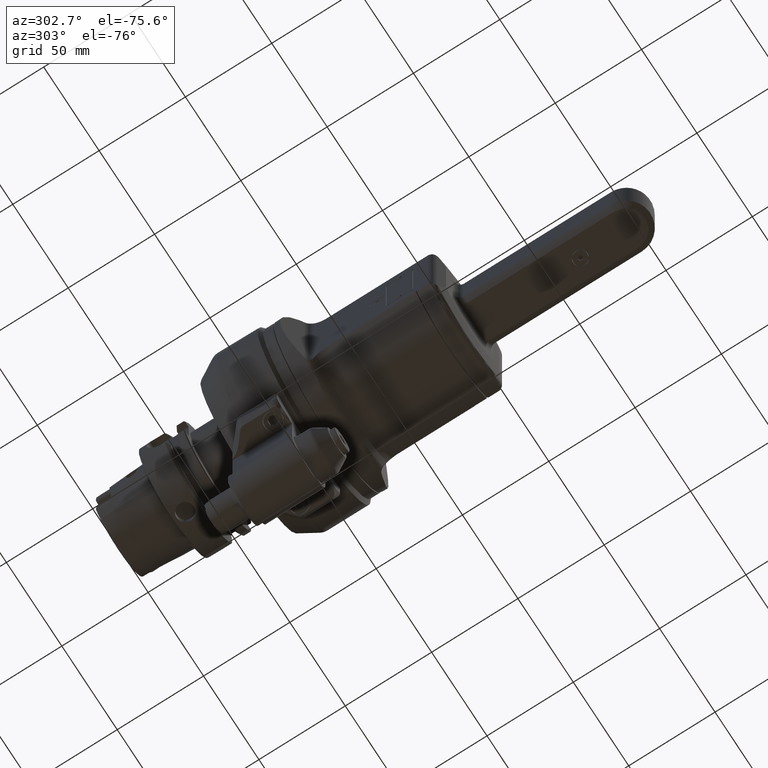
[diagram: clean part render]
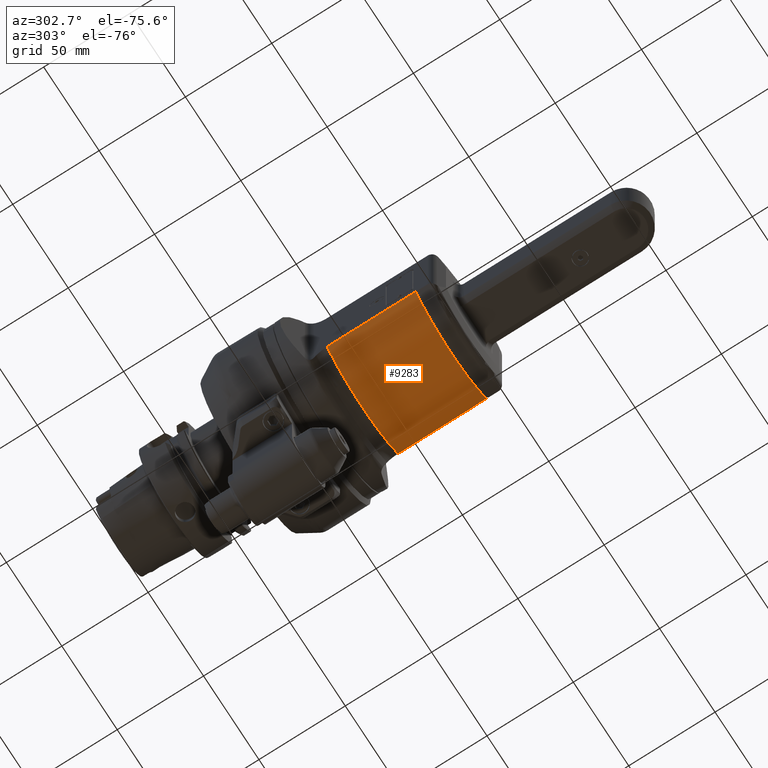
[diagram: same view with one face highlighted and labeled with its STEP entity id]
A machine part, auxiliary view. The second image highlights one B-rep face of the part: STEP entity #9283.
In plain terms, the highlighted cylindrical surface (partial cylindrical patch) has radius 42.5 mm, axis along (0, -1, 0).
Its self-contained STEP definition (entity closure, byte-faithful):
#1076=FACE_OUTER_BOUND('',#1668,.T.);
#1668=EDGE_LOOP('',(#8121,#8122,#8123,#8124,#8125,#8126,#8127));
#2121=CIRCLE('',#10257,51.9372405814551);
#2122=CIRCLE('',#10259,51.8413641367197);
#2143=CIRCLE('',#10302,42.5);
#2144=CIRCLE('',#10304,42.5);
#2854=LINE('',#57652,#3502);
#2865=LINE('',#57710,#3513);
#2869=LINE('',#57722,#3517);
#3502=VECTOR('',#12398,51.26935071414);
#3513=VECTOR('',#12437,6.3);
#3517=VECTOR('',#12451,44.46935112619);
#4357=VERTEX_POINT('',#57638);
#4358=VERTEX_POINT('',#57651);
#4380=VERTEX_POINT('',#57703);
#4381=VERTEX_POINT('',#57709);
#4382=VERTEX_POINT('',#57713);
#4383=VERTEX_POINT('',#57717);
#4384=VERTEX_POINT('',#57721);
#5604=EDGE_CURVE('',#4358,#4357,#2854,.T.);
#5629=EDGE_CURVE('',#4381,#4380,#2865,.T.);
#5631=EDGE_CURVE('',#4381,#4382,#2121,.T.);
#5633=EDGE_CURVE('',#4382,#4383,#2122,.T.);
#5635=EDGE_CURVE('',#4384,#4383,#2869,.T.);
#5687=EDGE_CURVE('',#4384,#4357,#2143,.T.);
#5688=EDGE_CURVE('',#4358,#4380,#2144,.T.);
#8121=ORIENTED_EDGE('',*,*,#5629,.T.);
#8122=ORIENTED_EDGE('',*,*,#5688,.F.);
#8123=ORIENTED_EDGE('',*,*,#5604,.T.);
#8124=ORIENTED_EDGE('',*,*,#5687,.F.);
#8125=ORIENTED_EDGE('',*,*,#5635,.T.);
#8126=ORIENTED_EDGE('',*,*,#5633,.F.);
#8127=ORIENTED_EDGE('',*,*,#5631,.F.);
#8830=CYLINDRICAL_SURFACE('',#10303,42.5);
#9283=ADVANCED_FACE('',(#1076),#8830,.T.);
#10257=AXIS2_PLACEMENT_3D('',#57714,#12441,#12442);
#10259=AXIS2_PLACEMENT_3D('',#57718,#12446,#12447);
#10302=AXIS2_PLACEMENT_3D('',#57933,#12547,#12548);
#10303=AXIS2_PLACEMENT_3D('',#57934,#12549,#12550);
#10304=AXIS2_PLACEMENT_3D('',#57935,#12551,#12552);
#12398=DIRECTION('',(-1.,3.473462719081E-9,3.035885849564E-9));
#12437=DIRECTION('',(1.,0.,0.));
#12441=DIRECTION('center_axis',(-0.707105409769089,2.43193874876257E-6,
0.707108152597164));
#12442=DIRECTION('ref_axis',(0.438957816045711,0.783987202337152,0.438953417009078));
#12446=DIRECTION('center_axis',(0.707103671021956,5.49545211017132E-6,0.707109891316105));
#12447=DIRECTION('ref_axis',(-0.444744495889397,0.77744036488246,0.444734541527318));
#12451=DIRECTION('',(1.,0.,0.));
#12547=DIRECTION('center_axis',(-1.,0.,0.));
#12548=DIRECTION('ref_axis',(0.,0.658087824515174,0.75294117647057));
#12549=DIRECTION('center_axis',(1.,0.,0.));
#12550=DIRECTION('ref_axis',(0.,1.,-3.61237605350076E-9));
#12551=DIRECTION('center_axis',(1.,0.,0.));
#12552=DIRECTION('ref_axis',(0.,0.658087824515174,-0.75294117647057));
#57638=CARTESIAN_POINT('',(17.23064887381,27.96873254189,-32.));
#57651=CARTESIAN_POINT('',(68.499999958775,27.9687323282249,-32.0000002221204));
#57652=CARTESIAN_POINT('',(68.49999958795,27.96873236381,-32.00000015565));
#57703=CARTESIAN_POINT('',(68.5,28.08273490955,31.9));
#57709=CARTESIAN_POINT('',(62.2,28.08273490955,31.9));
#57710=CARTESIAN_POINT('',(62.2,28.08273490955,31.9));
#57713=CARTESIAN_POINT('',(62.,28.30830266901,31.7));
#57714=CARTESIAN_POINT('Origin',(39.2017423029238,-12.4098292715587,8.90197077674531));
#57717=CARTESIAN_POINT('',(61.7,27.96873254189,32.));
#57718=CARTESIAN_POINT('Origin',(84.756161359204,-12.3348365085641,8.94435468850721));
#57721=CARTESIAN_POINT('',(17.23064887381,27.96873254189,32.));
#57722=CARTESIAN_POINT('',(17.23064887381,27.96873254189,32.));
#57933=CARTESIAN_POINT('Origin',(17.23064887381,0.,0.));
#57934=CARTESIAN_POINT('Origin',(22.25229287192,0.,0.));
#57935=CARTESIAN_POINT('Origin',(68.5,0.,0.));